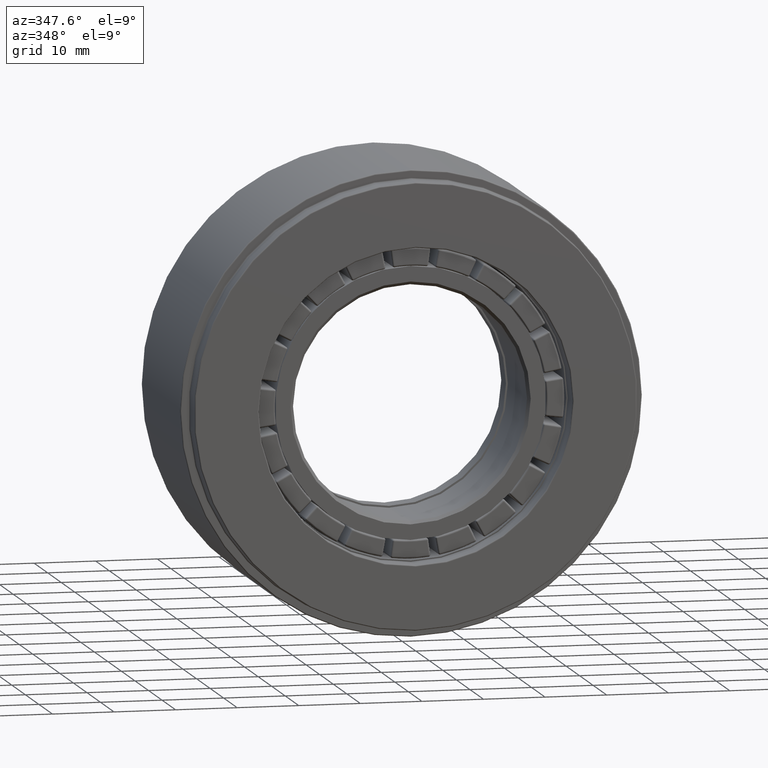
[diagram: clean part render]
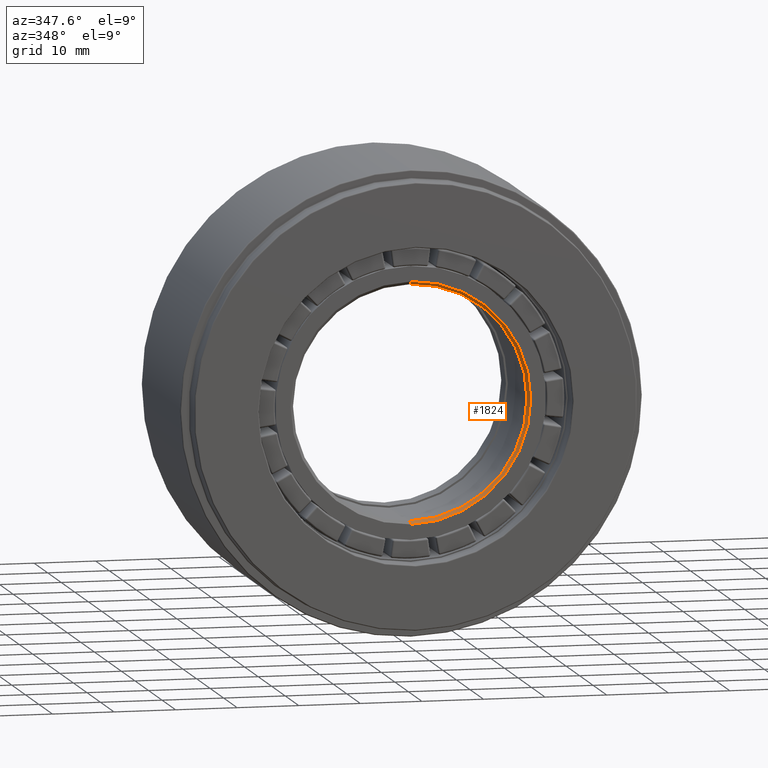
[diagram: same view with one face highlighted and labeled with its STEP entity id]
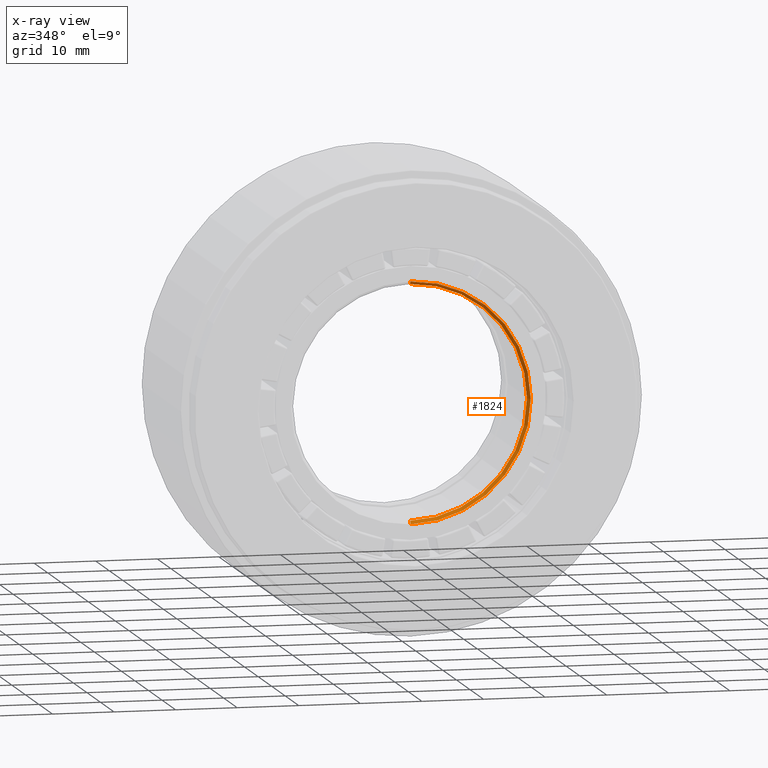
[diagram: x-ray of the same camera — body ghosted, the highlighted face saturated]
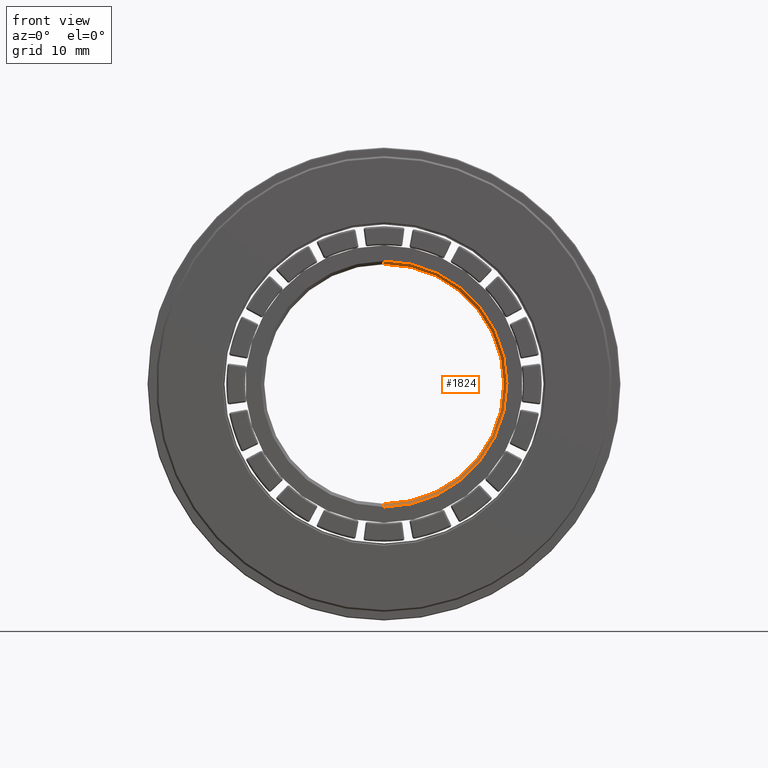
[diagram: same view with one face highlighted and labeled with its STEP entity id]
A machine part, auxiliary view. The second image highlights one B-rep face of the part: STEP entity #1824.
The next image is the same camera in x-ray: the body ghosted, the highlighted face saturated — about 0% of this face is hidden behind the body in this view.
A second angle (front view) of the same face is appended — the face is thin or edge-on in the first view.
In plain terms, the highlighted conical surface has half-angle 45 deg.
Its self-contained STEP definition (entity closure, byte-faithful):
#92 = DIRECTION ( 'NONE',  ( 0.0000000000000000000, 0.0000000000000000000, -1.000000000000000000 ) ) ;
#198 = LINE ( 'NONE', #3213, #2213 ) ;
#240 = CONICAL_SURFACE ( 'NONE', #261, 19.00000000000000000, 0.7853981633974415100 ) ;
#247 = VERTEX_POINT ( 'NONE', #1597 ) ;
#261 = AXIS2_PLACEMENT_3D ( 'NONE', #420, #2232, #2199 ) ;
#318 = LINE ( 'NONE', #2663, #1089 ) ;
#381 = VERTEX_POINT ( 'NONE', #3209 ) ;
#415 = AXIS2_PLACEMENT_3D ( 'NONE', #2949, #2162, #1158 ) ;
#420 = CARTESIAN_POINT ( 'NONE',  ( 0.0000000000000000000, 0.5000000000000072200, 0.0000000000000000000 ) ) ;
#495 = EDGE_CURVE ( 'NONE', #3128, #2071, #718, .T. ) ;
#571 = DIRECTION ( 'NONE',  ( 0.0000000000000000000, -1.000000000000000000, 0.0000000000000000000 ) ) ;
#638 = DIRECTION ( 'NONE',  ( 0.0000000000000000000, -0.7071067811865524600, -0.7071067811865426900 ) ) ;
#718 = CIRCLE ( 'NONE', #415, 19.50000000000000000 ) ;
#759 = EDGE_LOOP ( 'NONE', ( #776, #1329, #1264, #2167 ) ) ;
#776 = ORIENTED_EDGE ( 'NONE', *, *, #961, .F. ) ;
#836 = CARTESIAN_POINT ( 'NONE',  ( 0.0000000000000000000, 0.5000000000000072200, 0.0000000000000000000 ) ) ;
#961 = EDGE_CURVE ( 'NONE', #381, #247, #1365, .T. ) ;
#1015 = CARTESIAN_POINT ( 'NONE',  ( 2.388061258337338900E-015, -1.836970198721029700E-016, 19.50000000000000000 ) ) ;
#1026 = EDGE_CURVE ( 'NONE', #381, #2071, #318, .T. ) ;
#1089 = VECTOR ( 'NONE', #2672, 1000.000000000000000 ) ;
#1158 = DIRECTION ( 'NONE',  ( 0.0000000000000000000, 0.0000000000000000000, -1.000000000000000000 ) ) ;
#1264 = ORIENTED_EDGE ( 'NONE', *, *, #495, .F. ) ;
#1329 = ORIENTED_EDGE ( 'NONE', *, *, #1026, .T. ) ;
#1365 = CIRCLE ( 'NONE', #3088, 19.00000000000000000 ) ;
#1597 = CARTESIAN_POINT ( 'NONE',  ( 0.0000000000000000000, 0.5000000000000072200, -19.00000000000000000 ) ) ;
#1824 = ADVANCED_FACE ( 'NONE', ( #2376 ), #240, .F. ) ;
#2071 = VERTEX_POINT ( 'NONE', #1015 ) ;
#2162 = DIRECTION ( 'NONE',  ( 0.0000000000000000000, 1.000000000000000000, 0.0000000000000000000 ) ) ;
#2167 = ORIENTED_EDGE ( 'NONE', *, *, #3052, .F. ) ;
#2199 = DIRECTION ( 'NONE',  ( 0.0000000000000000000, 0.0000000000000000000, -1.000000000000000000 ) ) ;
#2213 = VECTOR ( 'NONE', #638, 1000.000000000000000 ) ;
#2232 = DIRECTION ( 'NONE',  ( 0.0000000000000000000, -1.000000000000000000, 0.0000000000000000000 ) ) ;
#2376 = FACE_OUTER_BOUND ( 'NONE', #759, .T. ) ;
#2457 = CARTESIAN_POINT ( 'NONE',  ( 0.0000000000000000000, -1.836970198721029700E-016, -19.50000000000000000 ) ) ;
#2663 = CARTESIAN_POINT ( 'NONE',  ( 2.326828918379971000E-015, 0.5000000000000072200, 19.00000000000000000 ) ) ;
#2672 = DIRECTION ( 'NONE',  ( 8.659560562354874900E-017, -0.7071067811865524600, 0.7071067811865426900 ) ) ;
#2949 = CARTESIAN_POINT ( 'NONE',  ( 0.0000000000000000000, -1.836970198721029700E-016, 0.0000000000000000000 ) ) ;
#3052 = EDGE_CURVE ( 'NONE', #247, #3128, #198, .T. ) ;
#3088 = AXIS2_PLACEMENT_3D ( 'NONE', #836, #571, #92 ) ;
#3128 = VERTEX_POINT ( 'NONE', #2457 ) ;
#3209 = CARTESIAN_POINT ( 'NONE',  ( 2.326828918379971000E-015, 0.5000000000000072200, 19.00000000000000000 ) ) ;
#3213 = CARTESIAN_POINT ( 'NONE',  ( 0.0000000000000000000, 0.5000000000000072200, -19.00000000000000000 ) ) ;